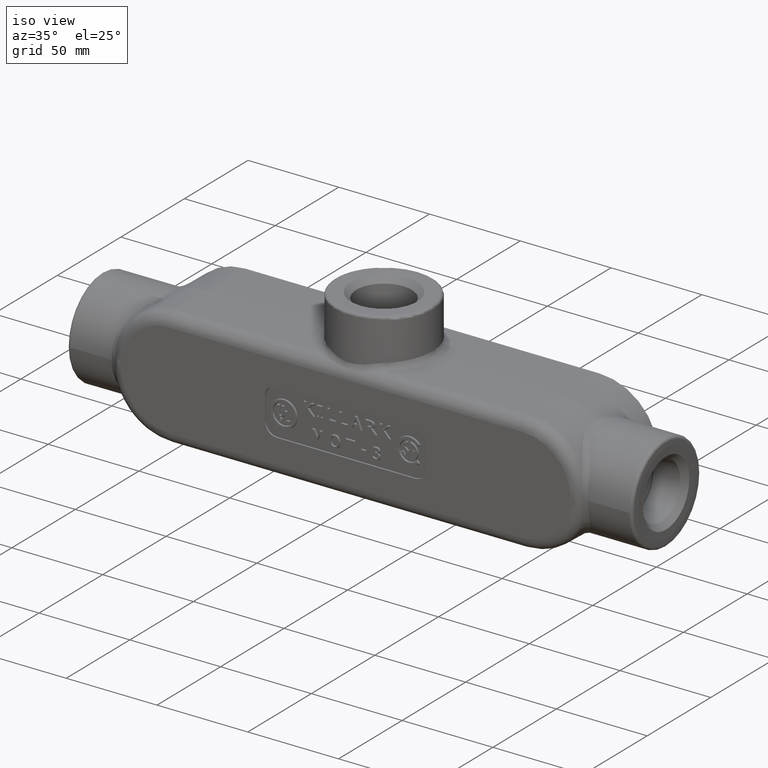
[diagram: clean part render]
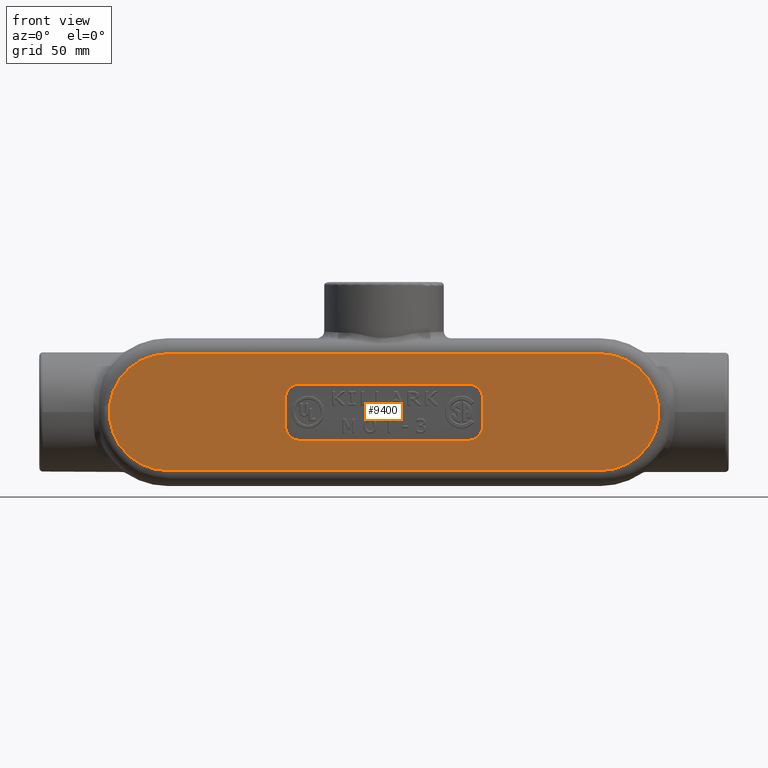
[diagram: tour spotlight — one face highlighted and labeled with its STEP entity id]
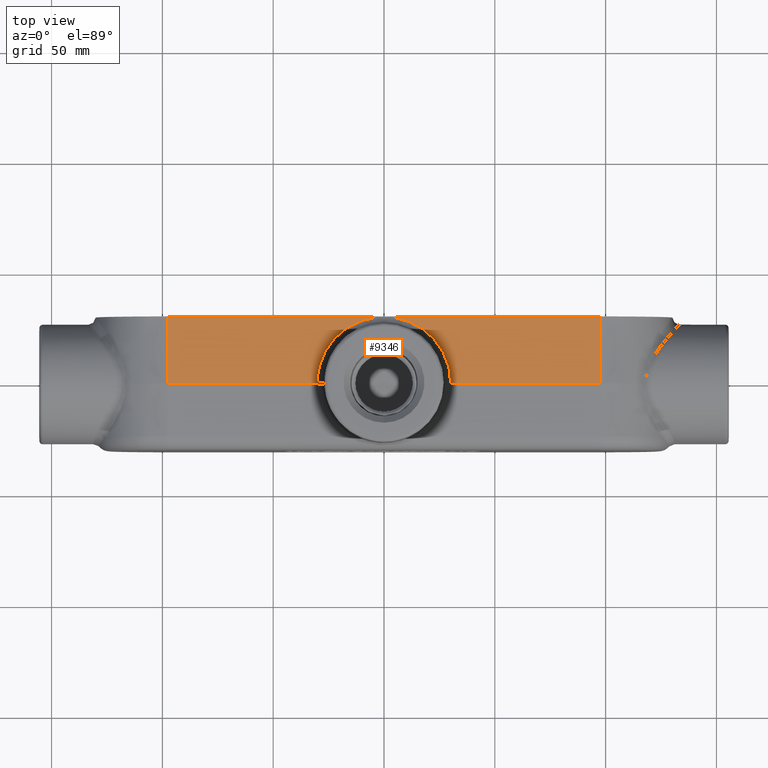
[diagram: tour spotlight — one face highlighted and labeled with its STEP entity id]
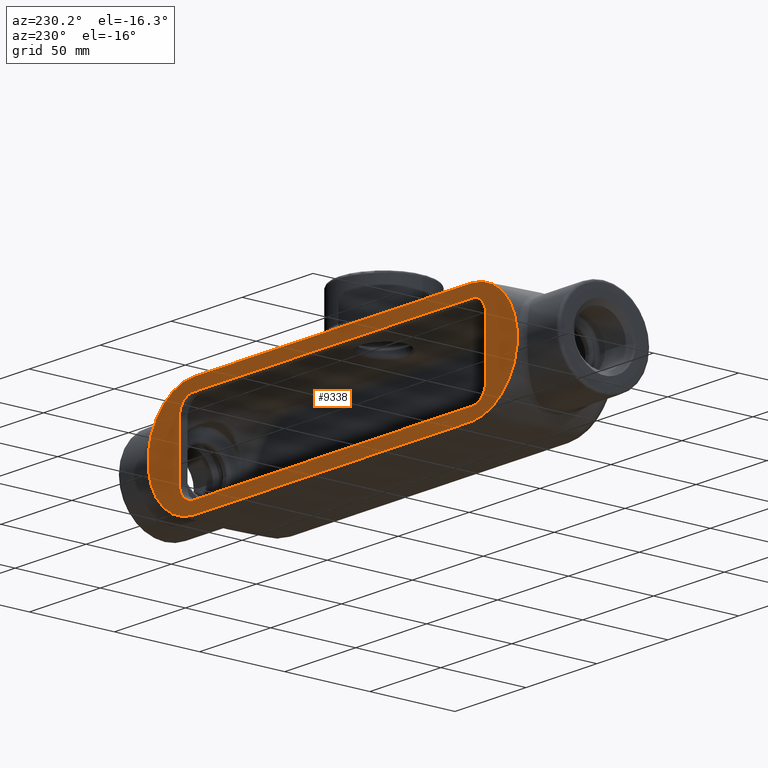
[diagram: tour spotlight — one face highlighted and labeled with its STEP entity id]
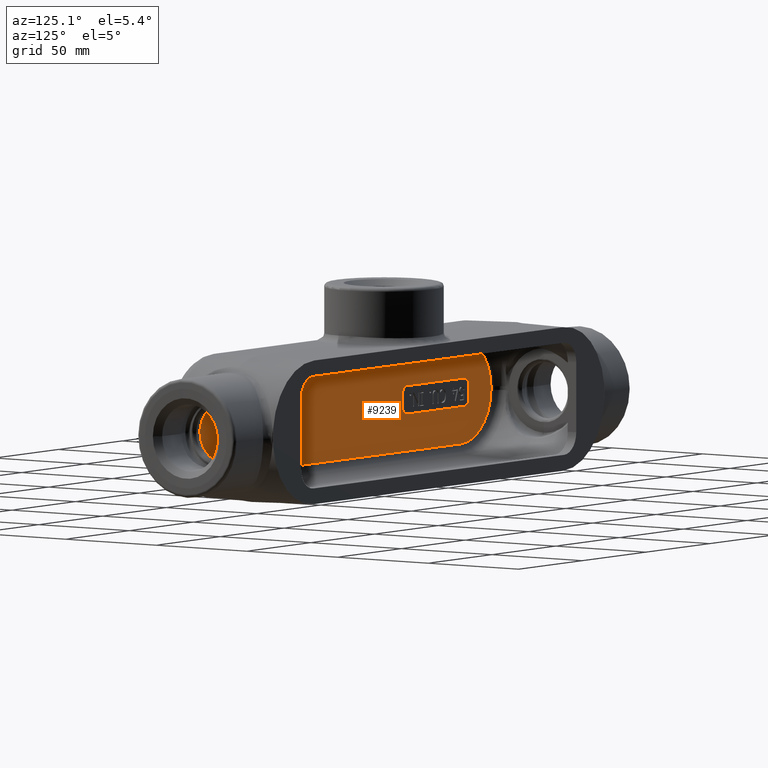
[diagram: tour spotlight — one face highlighted and labeled with its STEP entity id]
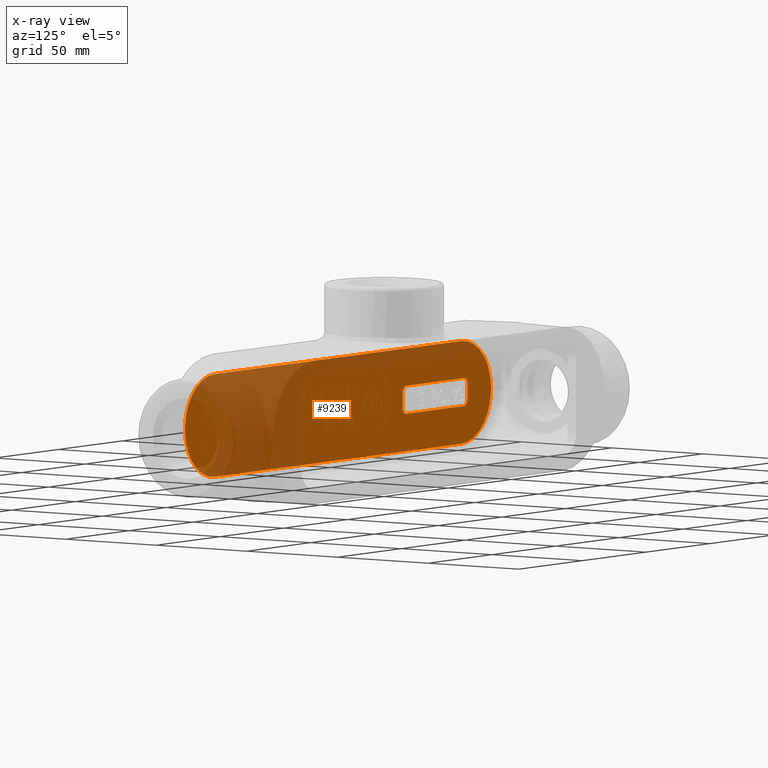
[diagram: x-ray of the same camera — body ghosted, this tour face saturated]
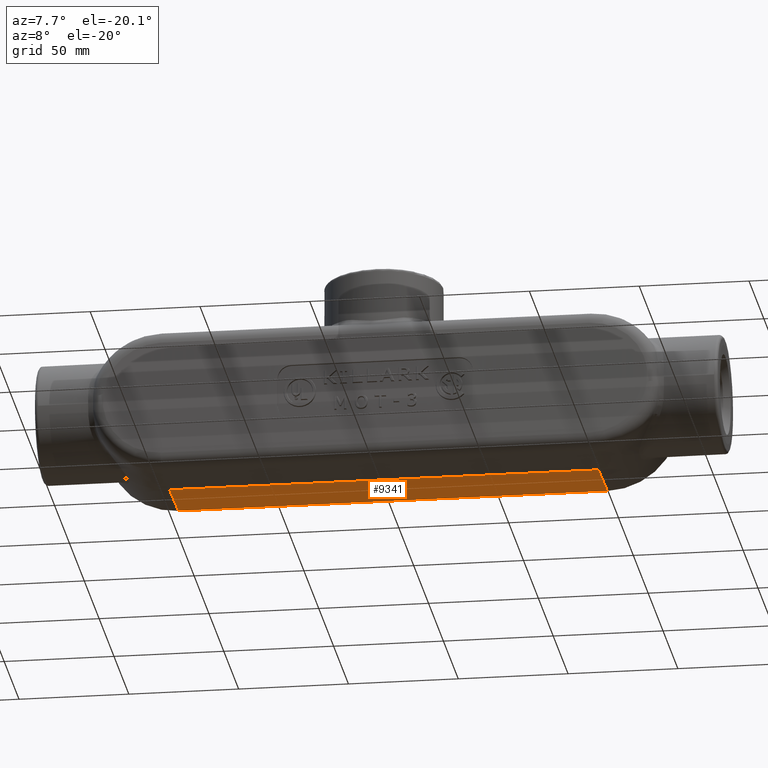
[diagram: tour spotlight — one face highlighted and labeled with its STEP entity id]
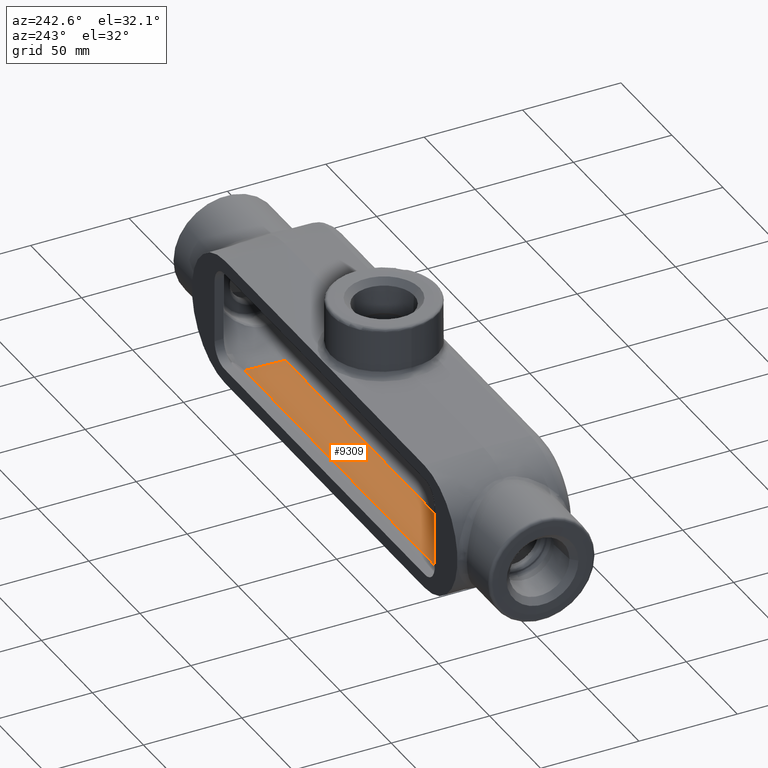
[diagram: tour spotlight — one face highlighted and labeled with its STEP entity id]
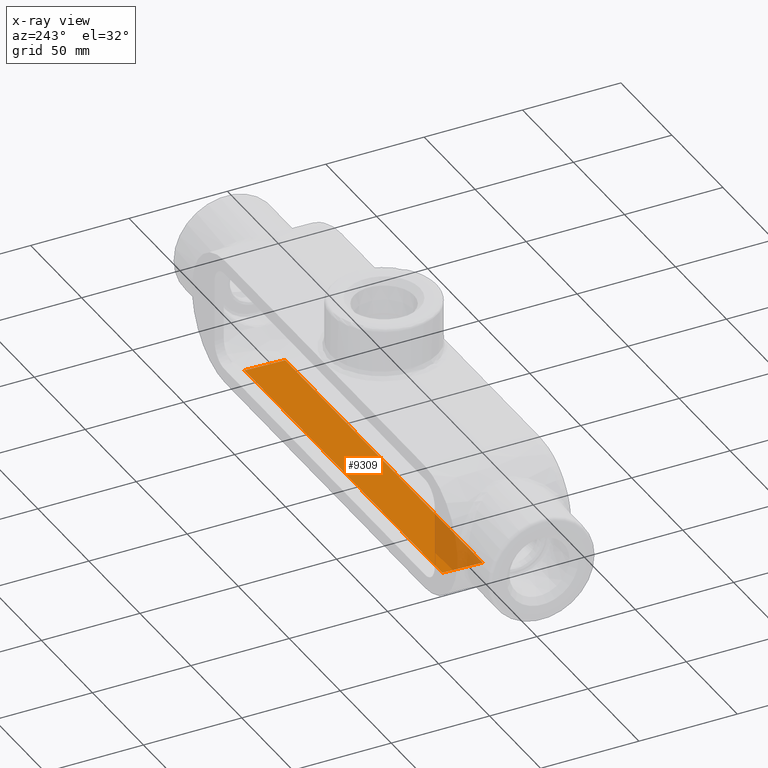
[diagram: x-ray of the same camera — body ghosted, this tour face saturated]
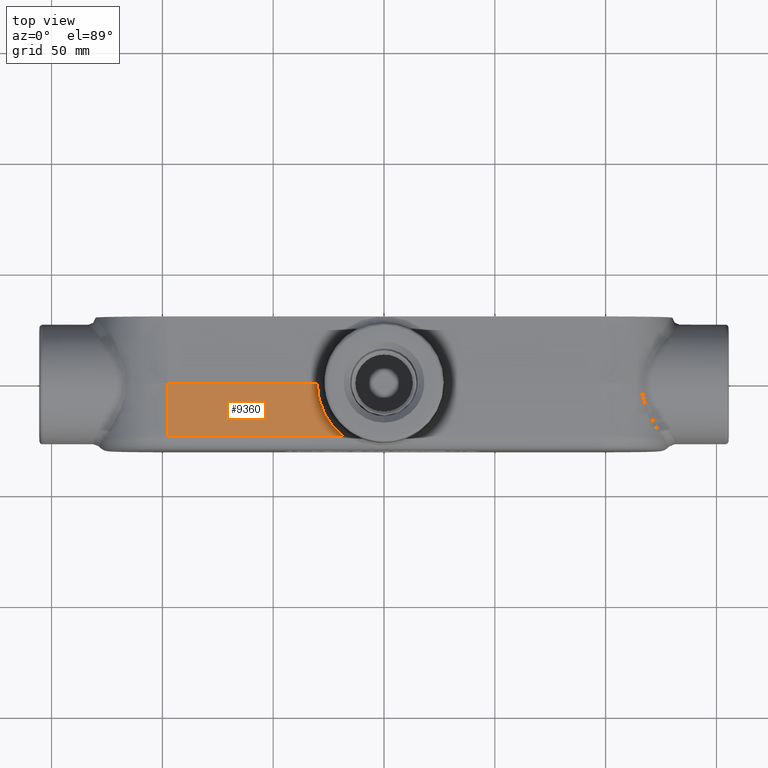
[diagram: tour spotlight — one face highlighted and labeled with its STEP entity id]
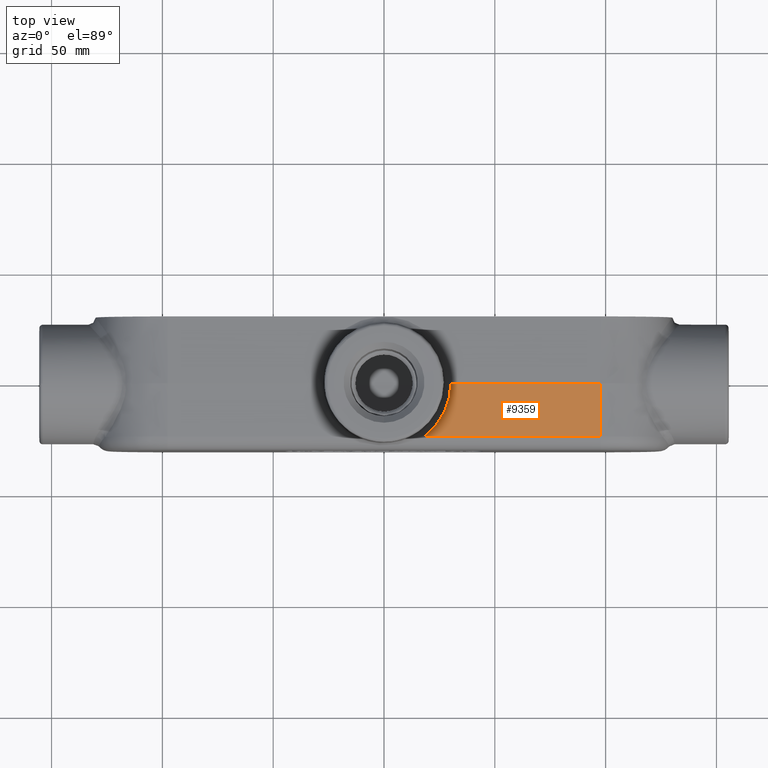
[diagram: tour spotlight — one face highlighted and labeled with its STEP entity id]
A machine part: a face-by-face anatomy tour. The part has 530 B-rep faces; the first image is the clean iso view, then the 8 largest visible faces are spotlighted one at a time (largest first), each with its STEP entity span.

Face 1 — front view, entity #9400. In plain terms, the highlighted planar face has unit normal (0, 1, 0).
Definition (entity closure, byte-faithful):
#175=FACE_BOUND('',#1887,.T.);
#863=PLANE('',#10042);
#1345=FACE_OUTER_BOUND('',#1886,.T.);
#1886=EDGE_LOOP('',(#7887,#7888,#7889,#7890));
#1887=EDGE_LOOP('',(#7891,#7892,#7893,#7894,#7895,#7896,#7897,#7898));
#2401=LINE('',#23289,#3135);
#2402=LINE('',#23297,#3136);
#2442=LINE('',#24054,#3176);
#2443=LINE('',#24058,#3177);
#2444=LINE('',#24062,#3178);
#2445=LINE('',#24065,#3179);
#3135=VECTOR('',#11298,0.393700787401575);
#3136=VECTOR('',#11309,0.393700787401575);
#3176=VECTOR('',#11411,0.393700787401575);
#3177=VECTOR('',#11414,0.393700787401575);
#3178=VECTOR('',#11417,0.393700787401575);
#3179=VECTOR('',#11420,0.393700787401575);
#3732=CIRCLE('',#10010,1.03786500040617);
#3735=CIRCLE('',#10015,1.03786500040617);
#3747=CIRCLE('',#10043,0.25);
#3748=CIRCLE('',#10044,0.25);
#3749=CIRCLE('',#10045,0.25);
#3750=CIRCLE('',#10046,0.25);
#4312=VERTEX_POINT('',#23286);
#4313=VERTEX_POINT('',#23288);
#4314=VERTEX_POINT('',#23292);
#4315=VERTEX_POINT('',#23296);
#4363=VERTEX_POINT('',#24050);
#4364=VERTEX_POINT('',#24051);
#4365=VERTEX_POINT('',#24053);
#4366=VERTEX_POINT('',#24055);
#4367=VERTEX_POINT('',#24057);
#4368=VERTEX_POINT('',#24059);
#4369=VERTEX_POINT('',#24061);
#4370=VERTEX_POINT('',#24063);
#5534=EDGE_CURVE('',#4312,#4313,#2401,.T.);
#5536=EDGE_CURVE('',#4313,#4314,#3732,.T.);
#5538=EDGE_CURVE('',#4314,#4315,#2402,.T.);
#5540=EDGE_CURVE('',#4315,#4312,#3735,.T.);
#5610=EDGE_CURVE('',#4363,#4364,#3747,.T.);
#5611=EDGE_CURVE('',#4364,#4365,#2442,.T.);
#5612=EDGE_CURVE('',#4365,#4366,#3748,.T.);
#5613=EDGE_CURVE('',#4366,#4367,#2443,.T.);
#5614=EDGE_CURVE('',#4367,#4368,#3749,.T.);
#5615=EDGE_CURVE('',#4368,#4369,#2444,.T.);
#5616=EDGE_CURVE('',#4369,#4370,#3750,.T.);
#5617=EDGE_CURVE('',#4370,#4363,#2445,.T.);
#7887=ORIENTED_EDGE('',*,*,#5540,.F.);
#7888=ORIENTED_EDGE('',*,*,#5538,.F.);
#7889=ORIENTED_EDGE('',*,*,#5536,.F.);
#7890=ORIENTED_EDGE('',*,*,#5534,.F.);
#7891=ORIENTED_EDGE('',*,*,#5610,.T.);
#7892=ORIENTED_EDGE('',*,*,#5611,.T.);
#7893=ORIENTED_EDGE('',*,*,#5612,.T.);
#7894=ORIENTED_EDGE('',*,*,#5613,.T.);
#7895=ORIENTED_EDGE('',*,*,#5614,.T.);
#7896=ORIENTED_EDGE('',*,*,#5615,.T.);
#7897=ORIENTED_EDGE('',*,*,#5616,.T.);
#7898=ORIENTED_EDGE('',*,*,#5617,.T.);
#9400=ADVANCED_FACE('',(#1345,#175),#863,.F.);
#10010=AXIS2_PLACEMENT_3D('',#23293,#11303,#11304);
#10015=AXIS2_PLACEMENT_3D('',#23300,#11314,#11315);
#10042=AXIS2_PLACEMENT_3D('',#24049,#11407,#11408);
#10043=AXIS2_PLACEMENT_3D('',#24052,#11409,#11410);
#10044=AXIS2_PLACEMENT_3D('',#24056,#11412,#11413);
#10045=AXIS2_PLACEMENT_3D('',#24060,#11415,#11416);
#10046=AXIS2_PLACEMENT_3D('',#24064,#11418,#11419);
#11298=DIRECTION('',(-1.,0.,2.38803492909579E-16));
#11303=DIRECTION('center_axis',(0.,1.,0.));
#11304=DIRECTION('ref_axis',(-1.,0.,-1.60812264967664E-16));
#11309=DIRECTION('',(1.,0.,-1.53516531156158E-16));
#11314=DIRECTION('center_axis',(0.,1.,0.));
#11315=DIRECTION('ref_axis',(1.,0.,-1.60812264967664E-16));
#11407=DIRECTION('center_axis',(0.,1.,0.));
#11408=DIRECTION('ref_axis',(0.,0.,1.));
#11409=DIRECTION('center_axis',(0.,1.,0.));
#11410=DIRECTION('ref_axis',(-1.,0.,-1.74838271594513E-16));
#11411=DIRECTION('',(-1.3987061727561E-15,0.,1.));
#11412=DIRECTION('center_axis',(0.,1.,0.));
#11413=DIRECTION('ref_axis',(1.3987061727561E-15,0.,1.));
#11414=DIRECTION('',(1.,0.,1.45698559662094E-16));
#11415=DIRECTION('center_axis',(0.,1.,0.));
#11416=DIRECTION('ref_axis',(1.,0.,-6.99353086378052E-16));
#11417=DIRECTION('',(0.,0.,-1.));
#11418=DIRECTION('center_axis',(0.,1.,0.));
#11419=DIRECTION('ref_axis',(-6.99353086378052E-16,0.,-1.));
#11420=DIRECTION('',(-1.,0.,0.));
#23286=CARTESIAN_POINT('',(3.84359578186341,-1.1875,-1.03786500040617));
#23288=CARTESIAN_POINT('',(-3.84359578186341,-1.1875,-1.03786500040617));
#23289=CARTESIAN_POINT('',(2.5625,-1.1875,-1.03786500040617));
#23292=CARTESIAN_POINT('',(-3.84359578186341,-1.1875,1.03786500040617));
#23293=CARTESIAN_POINT('Origin',(-3.84359578186341,-1.1875,4.37095678986282E-16));
#23296=CARTESIAN_POINT('',(3.84359578186341,-1.1875,1.03786500040617));
#23297=CARTESIAN_POINT('',(-2.5625,-1.1875,1.03786500040617));
#23300=CARTESIAN_POINT('Origin',(3.84359578186341,-1.1875,-1.13644876536433E-15));
#24049=CARTESIAN_POINT('Origin',(3.49676543189026E-16,-1.1875,-3.49676543189026E-16));
#24050=CARTESIAN_POINT('',(-1.5,-1.1875,-0.5));
#24051=CARTESIAN_POINT('',(-1.75,-1.1875,-0.25));
#24052=CARTESIAN_POINT('Origin',(-1.5,-1.1875,-0.25));
#24053=CARTESIAN_POINT('',(-1.75,-1.1875,0.25));
#24054=CARTESIAN_POINT('',(-1.75,-1.1875,-0.125000000000001));
#24055=CARTESIAN_POINT('',(-1.5,-1.1875,0.5));
#24056=CARTESIAN_POINT('Origin',(-1.5,-1.1875,0.25));
#24057=CARTESIAN_POINT('',(1.5,-1.1875,0.5));
#24058=CARTESIAN_POINT('',(-0.75,-1.1875,0.5));
#24059=CARTESIAN_POINT('',(1.75,-1.1875,0.25));
#24060=CARTESIAN_POINT('Origin',(1.5,-1.1875,0.25));
#24061=CARTESIAN_POINT('',(1.75,-1.1875,-0.25));
#24062=CARTESIAN_POINT('',(1.75,-1.1875,0.125));
#24063=CARTESIAN_POINT('',(1.5,-1.1875,-0.5));
#24064=CARTESIAN_POINT('Origin',(1.5,-1.1875,-0.25));
#24065=CARTESIAN_POINT('',(0.75,-1.1875,-0.5));

Face 2 — top view, entity #9346. In plain terms, the highlighted planar face has unit normal (0, 0.0262, 0.9997).
Definition (entity closure, byte-faithful):
#118=ELLIPSE('',#9955,1.18790706608291,1.1875);
#840=PLANE('',#9972);
#1291=FACE_OUTER_BOUND('',#1831,.T.);
#1831=EDGE_LOOP('',(#7631,#7632,#7633,#7634,#7635,#7636));
#2372=LINE('',#22277,#3106);
#2376=LINE('',#22539,#3110);
#2378=LINE('',#22670,#3112);
#2379=LINE('',#22671,#3113);
#2380=LINE('',#22672,#3114);
#3106=VECTOR('',#11173,0.393700787401575);
#3110=VECTOR('',#11193,0.393835745075145);
#3112=VECTOR('',#11205,0.393700787401575);
#3113=VECTOR('',#11206,0.393835745075145);
#3114=VECTOR('',#11207,0.393700787401575);
#4253=VERTEX_POINT('',#22201);
#4254=VERTEX_POINT('',#22202);
#4258=VERTEX_POINT('',#22271);
#4260=VERTEX_POINT('',#22275);
#4270=VERTEX_POINT('',#22537);
#4276=VERTEX_POINT('',#22669);
#5441=EDGE_CURVE('',#4253,#4254,#118,.T.);
#5448=EDGE_CURVE('',#4260,#4258,#2372,.F.);
#5461=EDGE_CURVE('',#4270,#4260,#2376,.T.);
#5472=EDGE_CURVE('',#4276,#4253,#2378,.T.);
#5473=EDGE_CURVE('',#4258,#4276,#2379,.T.);
#5474=EDGE_CURVE('',#4254,#4270,#2380,.T.);
#7631=ORIENTED_EDGE('',*,*,#5441,.F.);
#7632=ORIENTED_EDGE('',*,*,#5472,.F.);
#7633=ORIENTED_EDGE('',*,*,#5473,.F.);
#7634=ORIENTED_EDGE('',*,*,#5448,.F.);
#7635=ORIENTED_EDGE('',*,*,#5461,.F.);
#7636=ORIENTED_EDGE('',*,*,#5474,.F.);
#9346=ADVANCED_FACE('',(#1291),#840,.T.);
#9955=AXIS2_PLACEMENT_3D('',#22203,#11162,#11163);
#9972=AXIS2_PLACEMENT_3D('',#22668,#11203,#11204);
#11162=DIRECTION('center_axis',(1.53463924875091E-16,0.0261769483078732,
0.999657324975557));
#11163=DIRECTION('ref_axis',(0.,0.999657324975557,-0.0261769483078732));
#11173=DIRECTION('',(-1.,0.,1.53516531156158E-16));
#11193=DIRECTION('',(-1.01229721190616E-16,0.999657324975557,-0.0261769483078731));
#11203=DIRECTION('center_axis',(1.53463924875091E-16,0.0261769483078732,
0.999657324975557));
#11204=DIRECTION('ref_axis',(1.,0.,-1.53516531156158E-16));
#11205=DIRECTION('',(-1.,0.,1.53516531156158E-16));
#11206=DIRECTION('',(-9.31925325896583E-17,-0.999657324975557,0.0261769483078731));
#11207=DIRECTION('',(-1.,0.,1.53516531156158E-16));
#22201=CARTESIAN_POINT('',(1.18749549188208,-1.39866133603785E-15,1.3125));
#22202=CARTESIAN_POINT('',(-1.18749549188208,-1.39593135999555E-15,1.3125));
#22203=CARTESIAN_POINT('Origin',(-1.91829906093864E-17,-0.00327211853848414,
1.31258568343941));
#22271=CARTESIAN_POINT('',(3.84359578186341,1.1875,1.28140421813659));
#22275=CARTESIAN_POINT('',(-3.84359578186341,1.1875,1.28140421813659));
#22277=CARTESIAN_POINT('',(-2.5625,1.1875,1.28140421813659));
#22537=CARTESIAN_POINT('',(-3.84359578186341,-1.3987061727561E-15,1.3125));
#22539=CARTESIAN_POINT('',(-3.84359578186341,-0.291003761651864,1.32012020167895));
#22668=CARTESIAN_POINT('Origin',(-5.125,-1.18709307340847,1.3435851261156));
#22669=CARTESIAN_POINT('',(3.84359578186341,-1.3987061727561E-15,1.3125));
#22670=CARTESIAN_POINT('',(-5.125,-1.3987061727561E-15,1.3125));
#22671=CARTESIAN_POINT('',(3.84359578186341,-0.291003761651864,1.32012020167895));
#22672=CARTESIAN_POINT('',(-5.125,-1.3987061727561E-15,1.3125));

Face 3 — auxiliary view, entity #9338. In plain terms, the highlighted planar face has unit normal (0, 1, 0).
Definition (entity closure, byte-faithful):
#173=FACE_BOUND('',#1823,.T.);
#838=PLANE('',#9957);
#1283=FACE_OUTER_BOUND('',#1822,.T.);
#1822=EDGE_LOOP('',(#7579,#7580,#7581,#7582));
#1823=EDGE_LOOP('',(#7583,#7584,#7585,#7586,#7587,#7588,#7589,#7590));
#2360=LINE('',#21871,#3094);
#2363=LINE('',#21879,#3097);
#2366=LINE('',#21887,#3100);
#2369=LINE('',#21894,#3103);
#2371=LINE('',#22274,#3105);
#2372=LINE('',#22277,#3106);
#3094=VECTOR('',#11105,0.393700787401575);
#3097=VECTOR('',#11114,0.393700787401575);
#3100=VECTOR('',#11123,0.393700787401575);
#3103=VECTOR('',#11132,0.393700787401575);
#3105=VECTOR('',#11170,0.393700787401575);
#3106=VECTOR('',#11173,0.393700787401575);
#3693=CIRCLE('',#9930,0.375);
#3694=CIRCLE('',#9933,0.375);
#3695=CIRCLE('',#9936,0.375);
#3696=CIRCLE('',#9939,0.375);
#3708=CIRCLE('',#9958,1.28140421813659);
#3709=CIRCLE('',#9959,1.28140421813659);
#4232=VERTEX_POINT('',#21864);
#4233=VERTEX_POINT('',#21865);
#4234=VERTEX_POINT('',#21870);
#4235=VERTEX_POINT('',#21874);
#4236=VERTEX_POINT('',#21878);
#4237=VERTEX_POINT('',#21882);
#4238=VERTEX_POINT('',#21886);
#4239=VERTEX_POINT('',#21890);
#4257=VERTEX_POINT('',#22270);
#4258=VERTEX_POINT('',#22271);
#4259=VERTEX_POINT('',#22273);
#4260=VERTEX_POINT('',#22275);
#5409=EDGE_CURVE('',#4232,#4233,#3693,.T.);
#5412=EDGE_CURVE('',#4234,#4233,#2360,.T.);
#5414=EDGE_CURVE('',#4234,#4235,#3694,.T.);
#5416=EDGE_CURVE('',#4236,#4235,#2363,.T.);
#5418=EDGE_CURVE('',#4236,#4237,#3695,.T.);
#5420=EDGE_CURVE('',#4238,#4237,#2366,.T.);
#5422=EDGE_CURVE('',#4238,#4239,#3696,.T.);
#5424=EDGE_CURVE('',#4232,#4239,#2369,.T.);
#5445=EDGE_CURVE('',#4257,#4258,#3708,.T.);
#5446=EDGE_CURVE('',#4257,#4259,#2371,.F.);
#5447=EDGE_CURVE('',#4260,#4259,#3709,.T.);
#5448=EDGE_CURVE('',#4260,#4258,#2372,.F.);
#7579=ORIENTED_EDGE('',*,*,#5445,.F.);
#7580=ORIENTED_EDGE('',*,*,#5446,.T.);
#7581=ORIENTED_EDGE('',*,*,#5447,.F.);
#7582=ORIENTED_EDGE('',*,*,#5448,.T.);
#7583=ORIENTED_EDGE('',*,*,#5424,.T.);
#7584=ORIENTED_EDGE('',*,*,#5422,.F.);
#7585=ORIENTED_EDGE('',*,*,#5420,.T.);
#7586=ORIENTED_EDGE('',*,*,#5418,.F.);
#7587=ORIENTED_EDGE('',*,*,#5416,.T.);
#7588=ORIENTED_EDGE('',*,*,#5414,.F.);
#7589=ORIENTED_EDGE('',*,*,#5412,.T.);
#7590=ORIENTED_EDGE('',*,*,#5409,.F.);
#9338=ADVANCED_FACE('',(#1283,#173),#838,.T.);
#9930=AXIS2_PLACEMENT_3D('',#21866,#11099,#11100);
#9933=AXIS2_PLACEMENT_3D('',#21875,#11109,#11110);
#9936=AXIS2_PLACEMENT_3D('',#21883,#11118,#11119);
#9939=AXIS2_PLACEMENT_3D('',#21891,#11127,#11128);
#9957=AXIS2_PLACEMENT_3D('',#22269,#11166,#11167);
#9958=AXIS2_PLACEMENT_3D('',#22272,#11168,#11169);
#9959=AXIS2_PLACEMENT_3D('',#22276,#11171,#11172);
#11099=DIRECTION('center_axis',(0.,1.,0.));
#11100=DIRECTION('ref_axis',(-0.707106781186548,0.,-0.707106781186547));
#11105=DIRECTION('',(0.,0.,-1.));
#11109=DIRECTION('center_axis',(0.,1.,0.));
#11110=DIRECTION('ref_axis',(-0.707106781186547,0.,0.707106781186547));
#11114=DIRECTION('',(-1.,0.,1.02846042114419E-16));
#11118=DIRECTION('center_axis',(0.,1.,0.));
#11119=DIRECTION('ref_axis',(0.707106781186548,0.,0.707106781186547));
#11123=DIRECTION('',(3.49676543189026E-16,0.,1.));
#11127=DIRECTION('center_axis',(0.,1.,0.));
#11128=DIRECTION('ref_axis',(0.707106781186548,0.,-0.707106781186547));
#11132=DIRECTION('',(1.,0.,0.));
#11166=DIRECTION('center_axis',(0.,1.,0.));
#11167=DIRECTION('ref_axis',(0.,0.,1.));
#11168=DIRECTION('center_axis',(0.,-1.,0.));
#11169=DIRECTION('ref_axis',(0.,0.,-1.));
#11170=DIRECTION('',(1.,0.,-2.38803492909579E-16));
#11171=DIRECTION('center_axis',(0.,-1.,0.));
#11172=DIRECTION('ref_axis',(0.,0.,1.));
#11173=DIRECTION('',(-1.,0.,1.53516531156158E-16));
#21864=CARTESIAN_POINT('',(-3.875,1.1875,-1.));
#21865=CARTESIAN_POINT('',(-4.25,1.1875,-0.625));
#21866=CARTESIAN_POINT('Origin',(-3.875,1.1875,-0.625));
#21870=CARTESIAN_POINT('',(-4.25,1.1875,0.625));
#21871=CARTESIAN_POINT('',(-4.25,1.1875,1.));
#21874=CARTESIAN_POINT('',(-3.875,1.1875,1.));
#21875=CARTESIAN_POINT('Origin',(-3.875,1.1875,0.625));
#21878=CARTESIAN_POINT('',(3.875,1.1875,1.));
#21879=CARTESIAN_POINT('',(4.25,1.1875,1.));
#21882=CARTESIAN_POINT('',(4.25,1.1875,0.624999999999999));
#21883=CARTESIAN_POINT('Origin',(3.875,1.1875,0.625));
#21886=CARTESIAN_POINT('',(4.25,1.1875,-0.625));
#21887=CARTESIAN_POINT('',(4.25,1.1875,-1.));
#21890=CARTESIAN_POINT('',(3.875,1.1875,-1.));
#21891=CARTESIAN_POINT('Origin',(3.875,1.1875,-0.625));
#21894=CARTESIAN_POINT('',(-4.25,1.1875,-1.));
#22269=CARTESIAN_POINT('Origin',(6.99353086378051E-16,1.1875,-3.49676543189026E-16));
#22270=CARTESIAN_POINT('',(3.84359578186341,1.1875,-1.28140421813659));
#22271=CARTESIAN_POINT('',(3.84359578186341,1.1875,1.28140421813659));
#22272=CARTESIAN_POINT('Origin',(3.84359578186341,1.1875,-4.37095678986282E-16));
#22273=CARTESIAN_POINT('',(-3.84359578186341,1.1875,-1.28140421813659));
#22274=CARTESIAN_POINT('',(2.5625,1.1875,-1.28140421813659));
#22275=CARTESIAN_POINT('',(-3.84359578186341,1.1875,1.28140421813659));
#22276=CARTESIAN_POINT('Origin',(-3.84359578186341,1.1875,3.49676543189026E-16));
#22277=CARTESIAN_POINT('',(-2.5625,1.1875,1.28140421813659));

Face 4 — auxiliary view, entity #9239. An x-ray twin of the same camera follows (body ghosted, this face saturated) — the face is partly hidden behind the body. In plain terms, the highlighted planar face has unit normal (0, 1, 0).
Definition (entity closure, byte-faithful):
#172=FACE_BOUND('',#1723,.T.);
#821=PLANE('',#9767);
#1184=FACE_OUTER_BOUND('',#1722,.T.);
#1722=EDGE_LOOP('',(#7029,#7030,#7031,#7032,#7033,#7034,#7035,#7036));
#1723=EDGE_LOOP('',(#7037,#7038,#7039,#7040,#7041,#7042,#7043,#7044));
#2282=LINE('',#17829,#3016);
#2287=LINE('',#17843,#3021);
#2291=LINE('',#17855,#3025);
#2295=LINE('',#17867,#3029);
#2308=LINE('',#19204,#3042);
#2310=LINE('',#19237,#3044);
#2311=LINE('',#19242,#3045);
#2312=LINE('',#19245,#3046);
#3016=VECTOR('',#10553,0.393700787401575);
#3021=VECTOR('',#10566,0.393700787401575);
#3025=VECTOR('',#10578,0.393700787401575);
#3029=VECTOR('',#10590,0.393700787401575);
#3042=VECTOR('',#10723,0.393700787401575);
#3044=VECTOR('',#10729,0.393700787401575);
#3045=VECTOR('',#10734,0.393700787401575);
#3046=VECTOR('',#10737,0.393700787401575);
#3602=CIRCLE('',#9696,0.125818310049037);
#3604=CIRCLE('',#9700,0.125818310049037);
#3606=CIRCLE('',#9704,0.125818310049038);
#3608=CIRCLE('',#9708,0.125818310049037);
#3617=CIRCLE('',#9768,0.916159665132998);
#3618=CIRCLE('',#9769,0.916159665132998);
#3619=CIRCLE('',#9770,0.916159665132998);
#3620=CIRCLE('',#9771,0.916159665132998);
#4018=VERTEX_POINT('',#17827);
#4019=VERTEX_POINT('',#17828);
#4022=VERTEX_POINT('',#17836);
#4024=VERTEX_POINT('',#17842);
#4026=VERTEX_POINT('',#17848);
#4028=VERTEX_POINT('',#17854);
#4030=VERTEX_POINT('',#17860);
#4032=VERTEX_POINT('',#17866);
#4086=VERTEX_POINT('',#19202);
#4087=VERTEX_POINT('',#19203);
#4090=VERTEX_POINT('',#19233);
#4091=VERTEX_POINT('',#19234);
#4092=VERTEX_POINT('',#19236);
#4093=VERTEX_POINT('',#19239);
#4094=VERTEX_POINT('',#19241);
#4095=VERTEX_POINT('',#19243);
#5073=EDGE_CURVE('',#4018,#4019,#2282,.T.);
#5077=EDGE_CURVE('',#4019,#4022,#3602,.T.);
#5080=EDGE_CURVE('',#4022,#4024,#2287,.T.);
#5083=EDGE_CURVE('',#4024,#4026,#3604,.T.);
#5086=EDGE_CURVE('',#4026,#4028,#2291,.T.);
#5089=EDGE_CURVE('',#4028,#4030,#3606,.T.);
#5092=EDGE_CURVE('',#4030,#4032,#2295,.T.);
#5095=EDGE_CURVE('',#4032,#4018,#3608,.T.);
#5172=EDGE_CURVE('',#4086,#4087,#2308,.T.);
#5176=EDGE_CURVE('',#4090,#4091,#3617,.T.);
#5177=EDGE_CURVE('',#4092,#4090,#2310,.T.);
#5178=EDGE_CURVE('',#4087,#4092,#3618,.T.);
#5179=EDGE_CURVE('',#4093,#4086,#3619,.T.);
#5180=EDGE_CURVE('',#4094,#4093,#2311,.T.);
#5181=EDGE_CURVE('',#4095,#4094,#3620,.T.);
#5182=EDGE_CURVE('',#4091,#4095,#2312,.T.);
#7029=ORIENTED_EDGE('',*,*,#5176,.F.);
#7030=ORIENTED_EDGE('',*,*,#5177,.F.);
#7031=ORIENTED_EDGE('',*,*,#5178,.F.);
#7032=ORIENTED_EDGE('',*,*,#5172,.F.);
#7033=ORIENTED_EDGE('',*,*,#5179,.F.);
#7034=ORIENTED_EDGE('',*,*,#5180,.F.);
#7035=ORIENTED_EDGE('',*,*,#5181,.F.);
#7036=ORIENTED_EDGE('',*,*,#5182,.F.);
#7037=ORIENTED_EDGE('',*,*,#5073,.T.);
#7038=ORIENTED_EDGE('',*,*,#5077,.T.);
#7039=ORIENTED_EDGE('',*,*,#5080,.T.);
#7040=ORIENTED_EDGE('',*,*,#5083,.T.);
#7041=ORIENTED_EDGE('',*,*,#5086,.T.);
#7042=ORIENTED_EDGE('',*,*,#5089,.T.);
#7043=ORIENTED_EDGE('',*,*,#5092,.T.);
#7044=ORIENTED_EDGE('',*,*,#5095,.T.);
#9239=ADVANCED_FACE('',(#1184,#172),#821,.T.);
#9696=AXIS2_PLACEMENT_3D('',#17837,#10559,#10560);
#9700=AXIS2_PLACEMENT_3D('',#17849,#10571,#10572);
#9704=AXIS2_PLACEMENT_3D('',#17861,#10583,#10584);
#9708=AXIS2_PLACEMENT_3D('',#17872,#10595,#10596);
#9767=AXIS2_PLACEMENT_3D('',#19232,#10725,#10726);
#9768=AXIS2_PLACEMENT_3D('',#19235,#10727,#10728);
#9769=AXIS2_PLACEMENT_3D('',#19238,#10730,#10731);
#9770=AXIS2_PLACEMENT_3D('',#19240,#10732,#10733);
#9771=AXIS2_PLACEMENT_3D('',#19244,#10735,#10736);
#10553=DIRECTION('',(0.,0.,1.));
#10559=DIRECTION('center_axis',(0.,-1.,0.));
#10560=DIRECTION('ref_axis',(0.,0.,1.));
#10566=DIRECTION('',(-1.,0.,9.70571239658346E-20));
#10571=DIRECTION('center_axis',(0.,-1.,0.));
#10572=DIRECTION('ref_axis',(-1.,3.70646202805564E-18,0.));
#10578=DIRECTION('',(0.,0.,-1.));
#10583=DIRECTION('center_axis',(0.,-1.,0.));
#10584=DIRECTION('ref_axis',(0.,0.,-1.));
#10590=DIRECTION('',(1.,0.,9.70571239658346E-20));
#10595=DIRECTION('center_axis',(0.,-1.,0.));
#10596=DIRECTION('ref_axis',(1.,-3.70646202805564E-18,0.));
#10723=DIRECTION('',(0.,0.,1.));
#10725=DIRECTION('center_axis',(0.,1.,0.));
#10726=DIRECTION('ref_axis',(0.,0.,1.));
#10727=DIRECTION('center_axis',(0.,-1.,0.));
#10728=DIRECTION('ref_axis',(-0.696360550033688,0.,0.717692123655248));
#10729=DIRECTION('',(-1.,0.,1.4164113141834E-16));
#10730=DIRECTION('center_axis',(0.,-1.,0.));
#10731=DIRECTION('ref_axis',(0.696360550033732,0.,0.717692123655205));
#10732=DIRECTION('center_axis',(0.,-1.,0.));
#10733=DIRECTION('ref_axis',(0.696360550033732,0.,-0.717692123655205));
#10734=DIRECTION('',(1.,0.,-2.47871979982094E-16));
#10735=DIRECTION('center_axis',(0.,-1.,0.));
#10736=DIRECTION('ref_axis',(-0.696360550033688,0.,-0.717692123655248));
#10737=DIRECTION('',(0.,0.,-1.));
#17827=CARTESIAN_POINT('',(-1.99644766921578,-1.,-0.125));
#17828=CARTESIAN_POINT('',(-1.99644766921578,-1.,0.125));
#17829=CARTESIAN_POINT('',(-1.99644766921578,-1.,0.0624999999999997));
#17836=CARTESIAN_POINT('',(-2.12226597926481,-1.,0.250818310049037));
#17837=CARTESIAN_POINT('Origin',(-2.12226597926481,-1.,0.125));
#17842=CARTESIAN_POINT('',(-3.87226597926481,-1.,0.250818310049037));
#17843=CARTESIAN_POINT('',(-1.93613298963241,-1.,0.250818310049037));
#17848=CARTESIAN_POINT('',(-3.99808428931385,-1.,0.125));
#17849=CARTESIAN_POINT('Origin',(-3.87226597926481,-1.,0.125));
#17854=CARTESIAN_POINT('',(-3.99808428931385,-1.,-0.125));
#17855=CARTESIAN_POINT('',(-3.99808428931385,-1.,-0.0625000000000002));
#17860=CARTESIAN_POINT('',(-3.87226597926481,-1.,-0.250818310049037));
#17861=CARTESIAN_POINT('Origin',(-3.87226597926481,-1.,-0.125));
#17866=CARTESIAN_POINT('',(-2.12226597926481,-1.,-0.250818310049037));
#17867=CARTESIAN_POINT('',(-1.06113298963241,-1.,-0.250818310049037));
#17872=CARTESIAN_POINT('Origin',(-2.12226597926481,-1.,-0.125));
#19202=CARTESIAN_POINT('',(4.728159665133,-1.,-0.0302639994900092));
#19203=CARTESIAN_POINT('',(4.728159665133,-1.,0.0302639994900073));
#19204=CARTESIAN_POINT('',(4.728159665133,-1.,0.0167686463377236));
#19232=CARTESIAN_POINT('Origin',(3.49676543189026E-16,-1.,-5.24514814783538E-16));
#19233=CARTESIAN_POINT('',(-3.8125,-1.,0.916159665132998));
#19234=CARTESIAN_POINT('',(-4.728159665133,-1.,0.0302639994900233));
#19235=CARTESIAN_POINT('Origin',(-3.8125,-1.,1.74838271594513E-16));
#19236=CARTESIAN_POINT('',(3.8125,-1.,0.916159665132997));
#19237=CARTESIAN_POINT('',(-2.46875,-1.,0.916159665132998));
#19238=CARTESIAN_POINT('Origin',(3.8125,-1.,-1.04902962956708E-15));
#19239=CARTESIAN_POINT('',(3.8125,-1.,-0.916159665132999));
#19240=CARTESIAN_POINT('Origin',(3.8125,-1.,-1.04902962956708E-15));
#19241=CARTESIAN_POINT('',(-3.8125,-1.,-0.916159665132997));
#19242=CARTESIAN_POINT('',(2.46875,-1.,-0.916159665132998));
#19243=CARTESIAN_POINT('',(-4.728159665133,-1.,-0.0302639994900212));
#19244=CARTESIAN_POINT('Origin',(-3.8125,-1.,1.74838271594513E-16));
#19245=CARTESIAN_POINT('',(-4.728159665133,-1.,0.0167686463377236));

Face 5 — auxiliary view, entity #9341. In plain terms, the highlighted planar face has unit normal (-0, 0.0262, -0.9997).
Definition (entity closure, byte-faithful):
#839=PLANE('',#9965);
#1286=FACE_OUTER_BOUND('',#1826,.T.);
#1826=EDGE_LOOP('',(#7603,#7604,#7605,#7606));
#2371=LINE('',#22274,#3105);
#2373=LINE('',#22533,#3107);
#2374=LINE('',#22534,#3108);
#2375=LINE('',#22535,#3109);
#3105=VECTOR('',#11170,0.393700787401575);
#3107=VECTOR('',#11186,0.393700787401575);
#3108=VECTOR('',#11187,0.393835745075145);
#3109=VECTOR('',#11188,0.393835745075145);
#4257=VERTEX_POINT('',#22270);
#4259=VERTEX_POINT('',#22273);
#4268=VERTEX_POINT('',#22531);
#4269=VERTEX_POINT('',#22532);
#5446=EDGE_CURVE('',#4257,#4259,#2371,.F.);
#5457=EDGE_CURVE('',#4268,#4269,#2373,.T.);
#5458=EDGE_CURVE('',#4259,#4268,#2374,.T.);
#5459=EDGE_CURVE('',#4269,#4257,#2375,.T.);
#7603=ORIENTED_EDGE('',*,*,#5457,.F.);
#7604=ORIENTED_EDGE('',*,*,#5458,.F.);
#7605=ORIENTED_EDGE('',*,*,#5446,.F.);
#7606=ORIENTED_EDGE('',*,*,#5459,.F.);
#9341=ADVANCED_FACE('',(#1286),#839,.T.);
#9965=AXIS2_PLACEMENT_3D('',#22530,#11184,#11185);
#11170=DIRECTION('',(1.,0.,-2.38803492909579E-16));
#11184=DIRECTION('center_axis',(-2.38721660916809E-16,0.0261769483078732,
-0.999657324975557));
#11185=DIRECTION('ref_axis',(-1.,0.,2.38803492909579E-16));
#11186=DIRECTION('',(1.,0.,-2.38803492909579E-16));
#11187=DIRECTION('',(9.09599802005034E-17,-0.999657324975557,-0.0261769483078731));
#11188=DIRECTION('',(1.03462273579771E-16,0.999657324975557,0.0261769483078731));
#22270=CARTESIAN_POINT('',(3.84359578186341,1.1875,-1.28140421813659));
#22273=CARTESIAN_POINT('',(-3.84359578186341,1.1875,-1.28140421813659));
#22274=CARTESIAN_POINT('',(2.5625,1.1875,-1.28140421813659));
#22530=CARTESIAN_POINT('Origin',(5.125,-1.18709307340847,-1.3435851261156));
#22531=CARTESIAN_POINT('',(-3.84359578186341,-1.3987061727561E-15,-1.3125));
#22532=CARTESIAN_POINT('',(3.84359578186341,-1.3987061727561E-15,-1.3125));
#22533=CARTESIAN_POINT('',(5.125,-1.3987061727561E-15,-1.3125));
#22534=CARTESIAN_POINT('',(-3.84359578186341,-0.291003761651864,-1.32012020167895));
#22535=CARTESIAN_POINT('',(3.84359578186341,-0.291003761651864,-1.32012020167895));

Face 6 — auxiliary view, entity #9309. An x-ray twin of the same camera follows (body ghosted, this face saturated) — the face is partly hidden behind the body. In plain terms, the highlighted planar face has unit normal (-0, 0.0262, -0.9997).
Definition (entity closure, byte-faithful):
#829=PLANE('',#9890);
#1254=FACE_OUTER_BOUND('',#1793,.T.);
#1793=EDGE_LOOP('',(#7413,#7414,#7415,#7416));
#2334=LINE('',#21245,#3068);
#2345=LINE('',#21529,#3079);
#2346=LINE('',#21532,#3080);
#2347=LINE('',#21533,#3081);
#3068=VECTOR('',#10919,0.393700787401575);
#3079=VECTOR('',#11006,0.393700787401575);
#3080=VECTOR('',#11009,0.393700787401575);
#3081=VECTOR('',#11010,0.393700787401575);
#4172=VERTEX_POINT('',#21240);
#4173=VERTEX_POINT('',#21244);
#4203=VERTEX_POINT('',#21527);
#4204=VERTEX_POINT('',#21531);
#5316=EDGE_CURVE('',#4172,#4173,#2334,.T.);
#5364=EDGE_CURVE('',#4203,#4172,#2345,.T.);
#5365=EDGE_CURVE('',#4204,#4203,#2346,.T.);
#5366=EDGE_CURVE('',#4173,#4204,#2347,.T.);
#7413=ORIENTED_EDGE('',*,*,#5316,.F.);
#7414=ORIENTED_EDGE('',*,*,#5364,.F.);
#7415=ORIENTED_EDGE('',*,*,#5365,.F.);
#7416=ORIENTED_EDGE('',*,*,#5366,.F.);
#9309=ADVANCED_FACE('',(#1254),#829,.F.);
#9890=AXIS2_PLACEMENT_3D('',#21530,#11007,#11008);
#10919=DIRECTION('',(-1.,0.,2.47871979982094E-16));
#11006=DIRECTION('',(0.,-0.999657324975557,-0.0261769483078732));
#11007=DIRECTION('center_axis',(-2.47787040445295E-16,0.0261769483078732,
-0.999657324975557));
#11008=DIRECTION('ref_axis',(-1.,0.,2.47871979982094E-16));
#11009=DIRECTION('',(1.,0.,-2.47871979982094E-16));
#11010=DIRECTION('',(0.,0.999657324975557,0.0261769483078732));
#21240=CARTESIAN_POINT('',(3.8125,0.,-1.125));
#21244=CARTESIAN_POINT('',(-3.8125,0.,-1.125));
#21245=CARTESIAN_POINT('',(2.46875,0.,-1.125));
#21527=CARTESIAN_POINT('',(3.8125,0.812564251567083,-1.10372225623854));
#21529=CARTESIAN_POINT('',(3.8125,0.,-1.125));
#21530=CARTESIAN_POINT('Origin',(4.9375,-0.999657324975557,-1.15117694830787));
#21531=CARTESIAN_POINT('',(-3.8125,0.812564251567083,-1.10372225623854));
#21532=CARTESIAN_POINT('',(2.468625,0.812564251567083,-1.10372225623854));
#21533=CARTESIAN_POINT('',(-3.8125,0.,-1.125));

Face 7 — top view, entity #9360. In plain terms, the highlighted planar face has unit normal (0, -0.0262, 0.9997).
Definition (entity closure, byte-faithful):
#123=ELLIPSE('',#9978,1.18790706608291,1.1875);
#844=PLANE('',#9994);
#1305=FACE_OUTER_BOUND('',#1845,.T.);
#1845=EDGE_LOOP('',(#7702,#7703,#7704,#7705));
#2380=LINE('',#22672,#3114);
#2388=LINE('',#22885,#3122);
#2391=LINE('',#22947,#3125);
#3114=VECTOR('',#11207,0.393700787401575);
#3122=VECTOR('',#11251,0.393835745075145);
#3125=VECTOR('',#11262,0.393700787401575);
#4254=VERTEX_POINT('',#22202);
#4270=VERTEX_POINT('',#22537);
#4280=VERTEX_POINT('',#22742);
#4291=VERTEX_POINT('',#22883);
#5474=EDGE_CURVE('',#4254,#4270,#2380,.T.);
#5481=EDGE_CURVE('',#4254,#4280,#123,.T.);
#5501=EDGE_CURVE('',#4291,#4270,#2388,.T.);
#5506=EDGE_CURVE('',#4280,#4291,#2391,.T.);
#7702=ORIENTED_EDGE('',*,*,#5481,.F.);
#7703=ORIENTED_EDGE('',*,*,#5474,.T.);
#7704=ORIENTED_EDGE('',*,*,#5501,.F.);
#7705=ORIENTED_EDGE('',*,*,#5506,.F.);
#9360=ADVANCED_FACE('',(#1305),#844,.T.);
#9978=AXIS2_PLACEMENT_3D('',#22743,#11219,#11220);
#9994=AXIS2_PLACEMENT_3D('',#22946,#11260,#11261);
#11207=DIRECTION('',(-1.,0.,1.53516531156158E-16));
#11219=DIRECTION('center_axis',(1.53463924875091E-16,-0.0261769483078732,
0.999657324975557));
#11220=DIRECTION('ref_axis',(0.,-0.999657324975557,-0.0261769483078732));
#11251=DIRECTION('',(1.01229721190616E-16,0.999657324975557,0.0261769483078731));
#11260=DIRECTION('center_axis',(1.53463924875091E-16,-0.0261769483078732,
0.999657324975557));
#11261=DIRECTION('ref_axis',(1.,0.,-1.53516531156158E-16));
#11262=DIRECTION('',(-1.,0.,1.53516531156158E-16));
#22202=CARTESIAN_POINT('',(-1.18749549188208,-1.39593135999555E-15,1.3125));
#22537=CARTESIAN_POINT('',(-3.84359578186341,-1.3987061727561E-15,1.3125));
#22672=CARTESIAN_POINT('',(-5.125,-1.3987061727561E-15,1.3125));
#22742=CARTESIAN_POINT('',(-0.716064223644953,-0.944044237076829,1.28777933165006));
#22743=CARTESIAN_POINT('Origin',(-1.91829906093864E-17,0.00327211853848414,
1.31258568343941));
#22883=CARTESIAN_POINT('',(-3.84359578186341,-0.944044237076967,1.28777933165006));
#22885=CARTESIAN_POINT('',(-3.84359578186341,-0.895276433866962,1.28905636152002));
#22946=CARTESIAN_POINT('Origin',(-5.125,-1.18709307340847,1.2814148738844));
#22947=CARTESIAN_POINT('',(-2.5625,-0.944044237076968,1.28777933165006));

Face 8 — top view, entity #9359. In plain terms, the highlighted planar face has unit normal (0, -0.0262, 0.9997).
Definition (entity closure, byte-faithful):
#122=ELLIPSE('',#9977,1.18790706608291,1.1875);
#843=PLANE('',#9993);
#1304=FACE_OUTER_BOUND('',#1844,.T.);
#1844=EDGE_LOOP('',(#7698,#7699,#7700,#7701));
#2378=LINE('',#22670,#3112);
#2389=LINE('',#22944,#3123);
#2390=LINE('',#22945,#3124);
#3112=VECTOR('',#11205,0.393700787401575);
#3123=VECTOR('',#11258,0.393700787401575);
#3124=VECTOR('',#11259,0.393835745075145);
#4253=VERTEX_POINT('',#22201);
#4276=VERTEX_POINT('',#22669);
#4279=VERTEX_POINT('',#22714);
#4292=VERTEX_POINT('',#22943);
#5472=EDGE_CURVE('',#4276,#4253,#2378,.T.);
#5480=EDGE_CURVE('',#4279,#4253,#122,.T.);
#5504=EDGE_CURVE('',#4292,#4279,#2389,.T.);
#5505=EDGE_CURVE('',#4276,#4292,#2390,.T.);
#7698=ORIENTED_EDGE('',*,*,#5480,.F.);
#7699=ORIENTED_EDGE('',*,*,#5504,.F.);
#7700=ORIENTED_EDGE('',*,*,#5505,.F.);
#7701=ORIENTED_EDGE('',*,*,#5472,.T.);
#9359=ADVANCED_FACE('',(#1304),#843,.T.);
#9977=AXIS2_PLACEMENT_3D('',#22716,#11217,#11218);
#9993=AXIS2_PLACEMENT_3D('',#22942,#11256,#11257);
#11205=DIRECTION('',(-1.,0.,1.53516531156158E-16));
#11217=DIRECTION('center_axis',(1.53463924875091E-16,-0.0261769483078732,
0.999657324975557));
#11218=DIRECTION('ref_axis',(0.,-0.999657324975557,-0.0261769483078732));
#11256=DIRECTION('center_axis',(1.53463924875091E-16,-0.0261769483078732,
0.999657324975557));
#11257=DIRECTION('ref_axis',(1.,0.,-1.53516531156158E-16));
#11258=DIRECTION('',(-1.,0.,1.53516531156158E-16));
#11259=DIRECTION('',(9.31925325896583E-17,-0.999657324975557,-0.0261769483078731));
#22201=CARTESIAN_POINT('',(1.18749549188208,-1.39866133603785E-15,1.3125));
#22669=CARTESIAN_POINT('',(3.84359578186341,-1.3987061727561E-15,1.3125));
#22670=CARTESIAN_POINT('',(-5.125,-1.3987061727561E-15,1.3125));
#22714=CARTESIAN_POINT('',(0.7160642236444,-0.944044237076968,1.28777933165006));
#22716=CARTESIAN_POINT('Origin',(-1.91829906093864E-17,0.00327211853848414,
1.31258568343941));
#22942=CARTESIAN_POINT('Origin',(-5.125,-1.18709307340847,1.2814148738844));
#22943=CARTESIAN_POINT('',(3.84359578186341,-0.944044237076967,1.28777933165006));
#22944=CARTESIAN_POINT('',(-2.5625,-0.944044237076968,1.28777933165006));
#22945=CARTESIAN_POINT('',(3.84359578186341,-0.895276433866962,1.28905636152002));